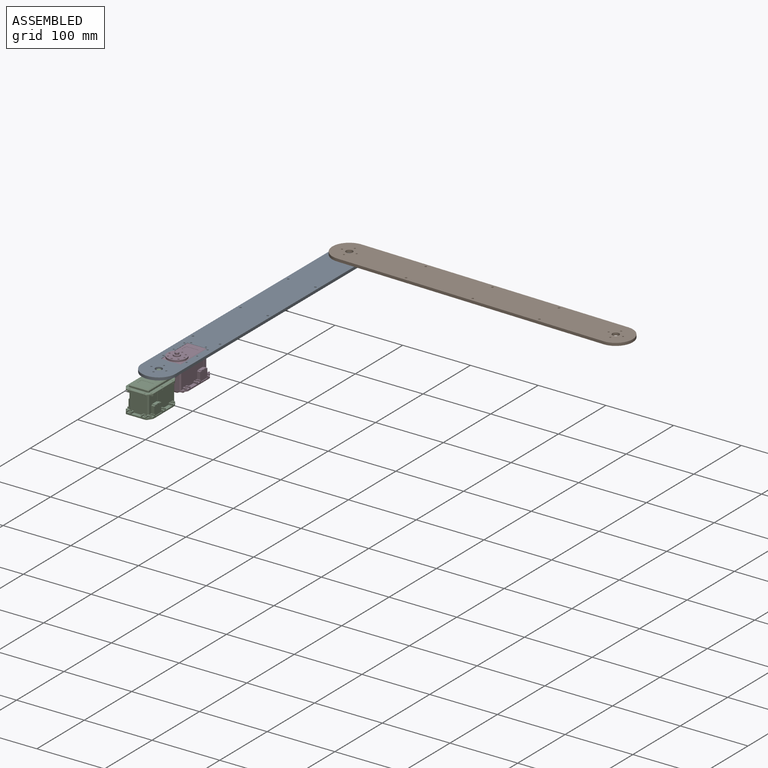
[diagram: assembled view]
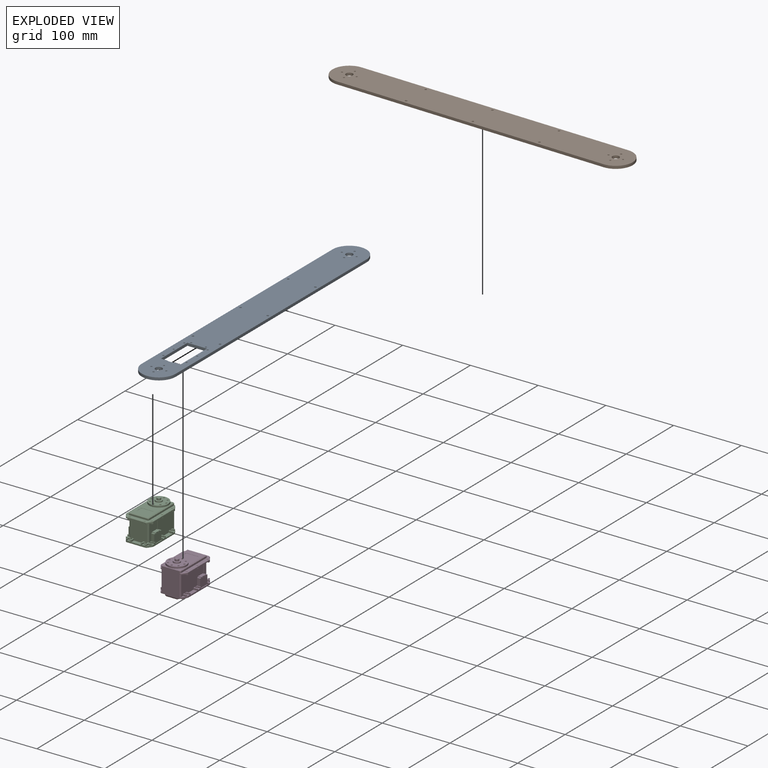
[diagram: exploded view]
GUIDED TOUR — FREECAD ASSEMBLY "arm_assembly"

This assembly has 4 components, labeled P0..P3 below (a component is one placed body or linked part; the same part can appear more than once), held together by 2 modeled joints plus 2 derived contact edges. A joint is a constraint between two components; its type names the relative motion it leaves free:
  CONTACT — a derived adjacency edge — the two components touch in the source model (clearance under 2% of the assembly's diagonal); it is measured from the geometry, not a modeled constraint,
  REVOLUTE — leaves rotation about the listed axis free (a hinge).
Axis/direction vectors are unit vectors and 'through' points are millimeter coordinates, both in the assembly's world frame.

MATES
  1. REVOLUTE [Revolute] "Joint": P0 <-> P2, axis (0.000, 0.000, 1.000) through (0.00, 0.00, 25.30) mm
  2. REVOLUTE [Revolute] "Joint001": P1 <-> P0, axis (0.000, 0.000, 1.000) through (1.29, 400.00, 29.30) mm
  3. CONTACT "contact_0_3": P0 <-> P3, contact direction (0.000, 0.000, -1.000) through (-11.26, 84.32, 25.34) mm (derived from contact, not a modeled constraint)
  4. CONTACT "contact_2_3": P2 <-> P3, contact direction (0.000, 1.000, 0.000) through (-0.29, 19.01, 26.77) mm (derived from contact, not a modeled constraint)

ASSEMBLY ORDER
  1. P0 — the base component [order verified]
  2. P3 [order verified]
  3. P2 [order verified]
  4. P1 [order verified]
Order-tag legend:
  [order verified] — this step's position reverses a verified removal order: the component was checked to insert without passing through the ones already placed.

Of the 4 components, 2 carry a construction recipe — the FreeCAD feature program (sketches with constraints, then the solid features that consume them) that regenerates the part from scratch, quoted from this document or from the linked companion document it references; the rest are supplied as boundary geometry only. The tour below walks the components in assembly order: each is shown spotlighted twice — in the assembled view, then in the exploded view, where a leader line traces a displaced component back to its assembled socket (components that stay in place when exploded have no leader line; saturated green if recipe-attached, orange if geometry-only; every other component desaturated gray) — followed by its recipe or geometry summary and the mates that hold it.
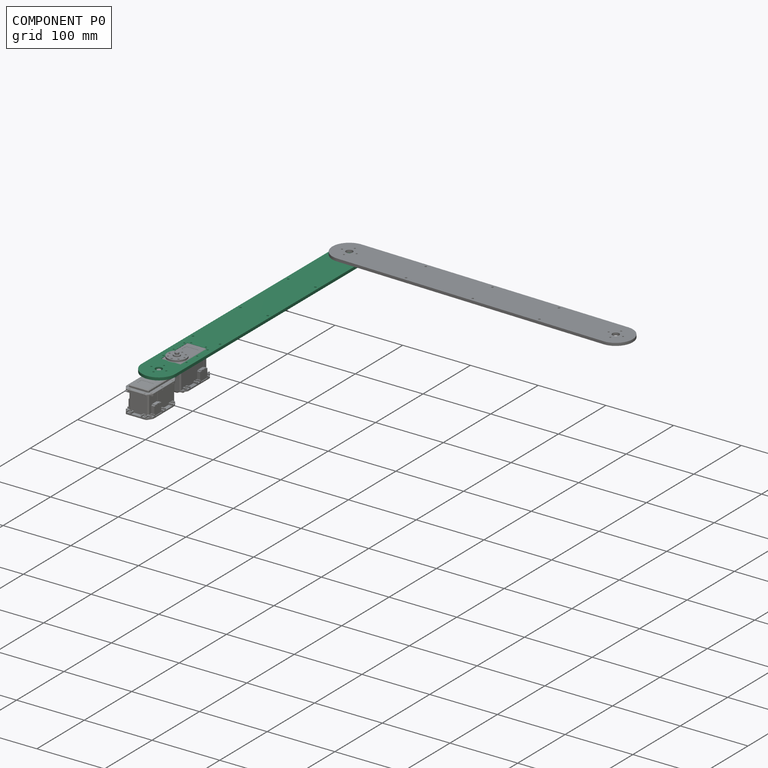
[diagram: component P0 — assembled]
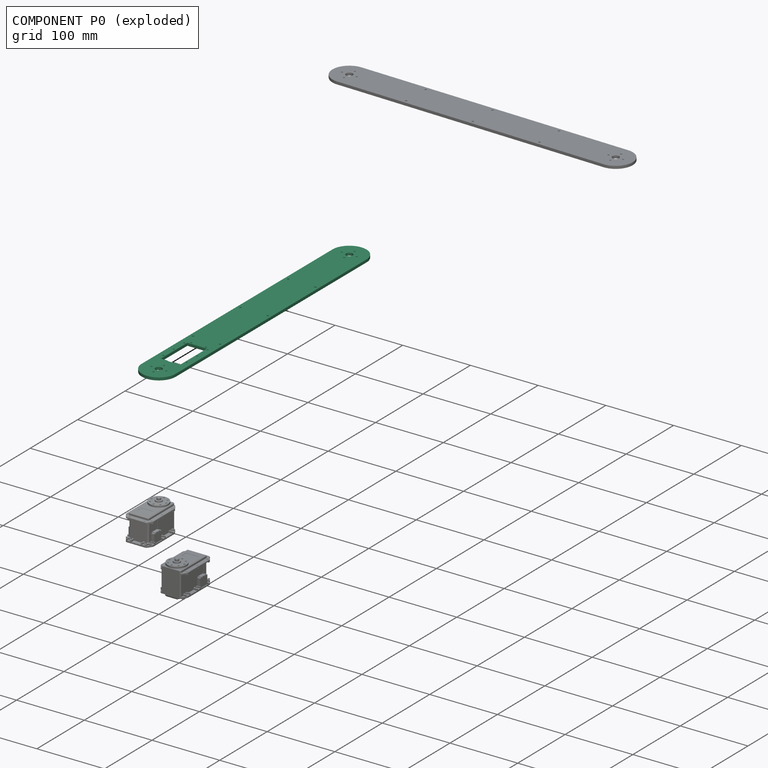
[diagram: component P0 — exploded]
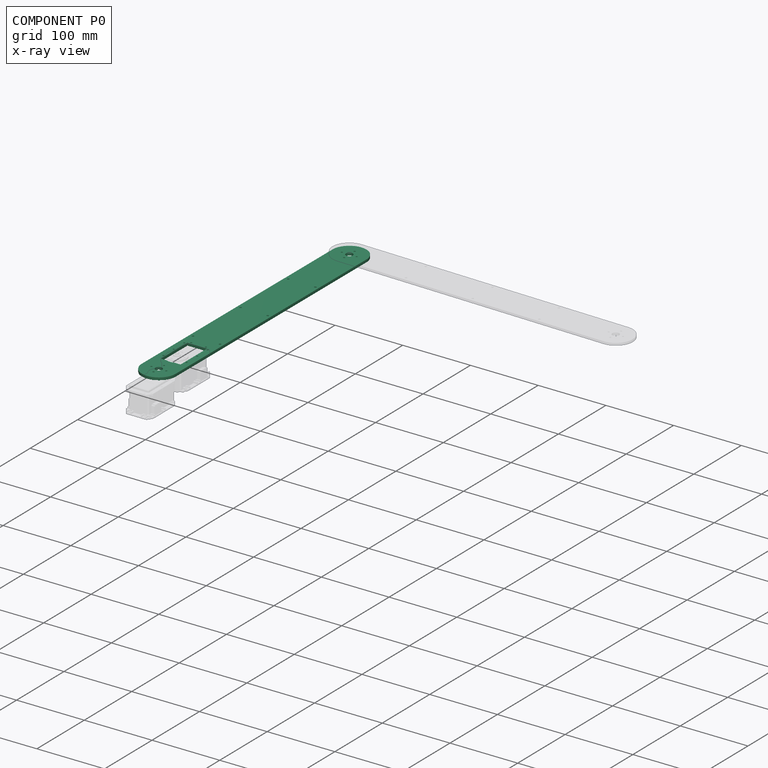
[diagram: component P0 — x-ray view]
COMPONENT P0 — recipe-attached ("arm_low_1", modeled in this document).
Held by: REVOLUTE mate "Joint" to P2; REVOLUTE mate "Joint001" to P1; resting contact with P3 (derived edge).
Construction recipe (the document's own serialized feature program — sketch geometry with constraints, then the solid features built on it; lengths are millimeters unless a unit is written):

FEATURE [Sketcher::SketchObject] Sketch
  ArcFitTolerance = 1e-06
  AttachmentSupport = -> [XY_Plane]
  FullyConstrained = false
  MakeInternals = false
  MapMode = 5
  sketch-geometry (67):
    g0: LineSegment [constr] StartX=1.5008e-12 StartY=20 StartZ=0 EndX=1.5008e-12 EndY=-20 EndZ=0
    g1: LineSegment [constr] StartX=-2.359e-12 StartY=0 StartZ=0 EndX=-2.359e-12 EndY=400 EndZ=0
    g2: LineSegment [constr] StartX=1.5008e-12 StartY=20 StartZ=0 EndX=1.5008e-12 EndY=25 EndZ=0
    g3: Circle CenterX=-2.359e-12 CenterY=400 CenterZ=0 NormalX=0 NormalY=0 NormalZ=1 AngleXU=0 Radius=5
    g4: Circle CenterX=-2.359e-12 CenterY=400 CenterZ=0 NormalX=0 NormalY=0 NormalZ=1 AngleXU=0 Radius=2
    g5: Circle CenterX=-10.9997 CenterY=400 CenterZ=0 NormalX=0 NormalY=0 NormalZ=1 AngleXU=0 Radius=1.25
    g6: Circle CenterX=0 CenterY=389 CenterZ=0 NormalX=0 NormalY=0 NormalZ=1 AngleXU=0 Radius=1.25
    g7: Circle CenterX=10.9997 CenterY=400 CenterZ=0 NormalX=0 NormalY=0 NormalZ=1 AngleXU=0 Radius=1.25
    g8: Circle CenterX=0 CenterY=411 CenterZ=0 NormalX=0 NormalY=0 NormalZ=1 AngleXU=0 Radius=1.25
    g9: LineSegment [constr] StartX=0 StartY=-5 StartZ=0 EndX=0 EndY=5.99996 EndZ=0
    g10: Circle [constr] CenterX=0 CenterY=0 CenterZ=0 NormalX=0 NormalY=0 NormalZ=1 AngleXU=0 Radius=14
    g11: LineSegment [constr] StartX=0 StartY=0 StartZ=0 EndX=25.23 EndY=0 EndZ=0
    g12: Circle [constr] CenterX=0 CenterY=-3.8e-05 CenterZ=0 NormalX=0 NormalY=0 NormalZ=1 AngleXU=0 Radius=11
    g13: Circle CenterX=0 CenterY=0 CenterZ=0 NormalX=0 NormalY=0 NormalZ=1 AngleXU=0 Radius=5
    g14: Circle CenterX=10.9997 CenterY=0 CenterZ=0 NormalX=0 NormalY=0 NormalZ=1 AngleXU=0 Radius=1.25
    g15: Circle CenterX=-10.9997 CenterY=0 CenterZ=0 NormalX=0 NormalY=0 NormalZ=1 AngleXU=0 Radius=1.25
    g16: Circle CenterX=0 CenterY=-10.9997 CenterZ=0 NormalX=0 NormalY=0 NormalZ=1 AngleXU=0 Radius=1.25
    g17: Circle CenterX=0 CenterY=11 CenterZ=0 NormalX=0 NormalY=0 NormalZ=1 AngleXU=0 Radius=1.25
    g18: LineSegment [constr] StartX=0 StartY=0 StartZ=0 EndX=-25 EndY=0 EndZ=0
    g19: LineSegment [constr] StartX=20.1368 StartY=86.0999 StartZ=0 EndX=20.1368 EndY=24.9999 EndZ=0
    g20: LineSegment [constr] StartX=0.036848 StartY=80.5 StartZ=0 EndX=14.5368 EndY=80.5 EndZ=0
    g21: LineSegment StartX=14.5368 StartY=80.5 StartZ=0 EndX=-14.4632 EndY=80.5 EndZ=0
    g22: LineSegment StartX=14.5368 StartY=80.5 StartZ=0 EndX=14.5368 EndY=24.9999 EndZ=0
    g23: Circle CenterX=11.0368 CenterY=83.3 CenterZ=0 NormalX=0 NormalY=0 NormalZ=1 AngleXU=0 Radius=1.25
    g24: Circle CenterX=17.3368 CenterY=78 CenterZ=0 NormalX=0 NormalY=0 NormalZ=1 AngleXU=0 Radius=1.25
    g25: LineSegment [constr] StartX=-20.0632 StartY=86.0999 StartZ=0 EndX=20.1368 EndY=86.0999 EndZ=0
    g26: Circle CenterX=17.3368 CenterY=56 CenterZ=0 NormalX=0 NormalY=0 NormalZ=1 AngleXU=0 Radius=1.25
    g27: Circle CenterX=17.3368 CenterY=34 CenterZ=0 NormalX=0 NormalY=0 NormalZ=1 AngleXU=0 Radius=1.25
    g28: Circle [constr] CenterX=0.036848 CenterY=37.9999 CenterZ=0 NormalX=0 NormalY=0 NormalZ=1 AngleXU=0 Radius=14
    g29: ArcOfCircle CenterX=0.036848 CenterY=37.9999 CenterZ=0 NormalX=0 NormalY=0 NormalZ=1 AngleXU=0 Radius=14 StartAngle=4.33214 EndAngle=5.09264
    g30: LineSegment StartX=5.233 StartY=24.9999 StartZ=0 EndX=14.5368 EndY=24.9999 EndZ=0
    g31: LineSegment [constr] StartX=14.5368 StartY=24.9999 StartZ=0 EndX=20.1368 EndY=24.9999 EndZ=0
    g32: LineSegment [constr] StartX=17.3368 StartY=56 StartZ=0 EndX=-17.2632 EndY=56 EndZ=0
    g33: LineSegment [constr] StartX=-20.0632 StartY=24.9999 StartZ=0 EndX=-20.0632 EndY=86.0999 EndZ=0
    g34: LineSegment StartX=-14.4632 StartY=80.5 StartZ=0 EndX=-14.4632 EndY=24.9999 EndZ=0
    g35: Circle CenterX=-17.2632 CenterY=78 CenterZ=0 NormalX=0 NormalY=0 NormalZ=1 AngleXU=0 Radius=1.25
    g36: Circle CenterX=-10.9632 CenterY=83.3 CenterZ=0 NormalX=0 NormalY=0 NormalZ=1 AngleXU=0 Radius=1.25
    g37: Circle CenterX=-17.2632 CenterY=56 CenterZ=0 NormalX=0 NormalY=0 NormalZ=1 AngleXU=0 Radius=1.25
    g38: Circle CenterX=-17.2632 CenterY=34 CenterZ=0 NormalX=0 NormalY=0 NormalZ=1 AngleXU=0 Radius=1.25
    g39: LineSegment StartX=-14.4632 StartY=24.9999 StartZ=0 EndX=-5.15931 EndY=24.9999 EndZ=0
    g40: LineSegment [constr] StartX=-20.0632 StartY=24.9999 StartZ=0 EndX=-14.4632 EndY=24.9999 EndZ=0
    g41: ArcOfCircle CenterX=0.115002 CenterY=3.75548e-06 CenterZ=0 NormalX=0 NormalY=0 NormalZ=1 AngleXU=0 Radius=25.115 StartAngle=3.14159 EndAngle=6.28319
    g42: ArcOfCircle CenterX=0.115002 CenterY=399.959 CenterZ=0 NormalX=0 NormalY=0 NormalZ=1 AngleXU=0 Radius=25.115 StartAngle=0 EndAngle=3.14159
    g43: LineSegment StartX=-25 StartY=3.75548e-06 StartZ=0 EndX=-25 EndY=399.959 EndZ=0
    g44: LineSegment StartX=25.23 StartY=3.75548e-06 StartZ=0 EndX=25.23 EndY=399.959 EndZ=0
    g45: LineSegment [constr] StartX=25.23 StartY=199.98 StartZ=0 EndX=-25 EndY=199.98 EndZ=0
    g46: LineSegment [constr] StartX=25.23 StartY=199.98 StartZ=0 EndX=55.23 EndY=199.98 EndZ=0
    g47: LineSegment [constr] StartX=25.23 StartY=0 StartZ=0 EndX=55.23 EndY=0 EndZ=0
    g48: LineSegment [constr] StartX=55.23 StartY=0 StartZ=0 EndX=55.23 EndY=199.98 EndZ=0
    g49: LineSegment [constr] StartX=55.23 StartY=99.9898 StartZ=0 EndX=25.23 EndY=99.9898 EndZ=0
    g50: LineSegment [constr] StartX=25.23 StartY=99.9898 StartZ=0 EndX=-25 EndY=99.9898 EndZ=0
    g51: LineSegment [constr] StartX=25.23 StartY=399.959 StartZ=0 EndX=55.23 EndY=399.959 EndZ=0
    g52: LineSegment [constr] StartX=55.23 StartY=399.959 StartZ=0 EndX=55.23 EndY=199.98 EndZ=0
    g53: LineSegment [constr] StartX=55.23 StartY=299.969 StartZ=0 EndX=25.23 EndY=299.969 EndZ=0
    g54: LineSegment [constr] StartX=25.23 StartY=299.969 StartZ=0 EndX=-25 EndY=299.969 EndZ=0
    g55: LineSegment [constr] StartX=-25 StartY=299.969 StartZ=0 EndX=-20 EndY=299.969 EndZ=0
    g56: LineSegment [constr] StartX=-20 StartY=299.969 StartZ=0 EndX=-20 EndY=199.98 EndZ=0
    g57: LineSegment [constr] StartX=-20 StartY=199.98 StartZ=0 EndX=-20 EndY=99.9898 EndZ=0
    g58: LineSegment [constr] StartX=25.23 StartY=299.969 StartZ=0 EndX=20.23 EndY=299.969 EndZ=0
    g59: LineSegment [constr] StartX=20.23 StartY=299.969 StartZ=0 EndX=20.23 EndY=199.98 EndZ=0
    g60: LineSegment [constr] StartX=20.23 StartY=199.98 StartZ=0 EndX=20.23 EndY=99.9898 EndZ=0
    g61: Circle CenterX=-20 CenterY=299.969 CenterZ=0 NormalX=0 NormalY=0 NormalZ=1 AngleXU=0 Radius=1.5
    g62: Circle CenterX=20.23 CenterY=299.969 CenterZ=0 NormalX=0 NormalY=0 NormalZ=1 AngleXU=0 Radius=1.5
    g63: Circle CenterX=-20 CenterY=199.98 CenterZ=0 NormalX=0 NormalY=0 NormalZ=1 AngleXU=0 Radius=1.5
    g64: Circle CenterX=20.23 CenterY=199.98 CenterZ=0 NormalX=0 NormalY=0 NormalZ=1 AngleXU=0 Radius=1.5
    g65: Circle CenterX=-20 CenterY=99.9898 CenterZ=0 NormalX=0 NormalY=0 NormalZ=1 AngleXU=0 Radius=1.5
    g66: Circle CenterX=20.23 CenterY=99.9898 CenterZ=0 NormalX=0 NormalY=0 NormalZ=1 AngleXU=0 Radius=1.5
  constraints (132):
    c: Vertical(g0)
    c: Vertical(g1)
    c: Coincident(g2,g0)
    c: Vertical(g2)
    c: Diameter(g3) = 10
    c: Coincident(g3,g1)
    c: Diameter(g4) = 4
    c: Coincident(g4,g1)
    c: Diameter(g8) = 2.5
    c: Diameter(g5) = 2.5
    c: Diameter(g6) = 2.5
    c: Diameter(g7) = 2.5
    c: Vertical(g9)
    c: Diameter(g10) = 28
    c: Coincident(g18,g10)
    c: Horizontal(g18)
    c: Coincident(g11,g10)
    c: Horizontal(g11)
    c: Diameter(g12) = 22
    c: Diameter(g13) = 10
    c: Coincident(g13,g10)
    c: Diameter(g17) = 2.5
    c: Diameter(g15) = 2.5
    c: Diameter(g16) = 2.5
    c: Diameter(g14) = 2.5
    c: Coincident(g25,g19)
    c: Coincident(g33,g25)
    c: Horizontal(g25)
    c: Vertical(g19)
    c: Vertical(g33)
    c: Distance(g19,g33) = 40.2
    c: Distance(g25,g33) = 61.1
    c: Diameter(g29) = 28
    c: Horizontal(g20)
    c: Coincident(g21,g20)
    c: Horizontal(g21)
    c: Coincident(g34,g21)
    c: Vertical(g34)
    c: Coincident(g22,g20)
    c: Vertical(g22)
    c: Diameter(g23) = 2.5
    c: Equal(g23,g36)
    c: Equal(g23,g27)
    c: Equal(g23,g38)
    c: Equal(g23,g37)
    c: Equal(g23,g35)
    c: Equal(g23,g24)
    c: Equal(g23,g26)
    c: Coincident(g28,g29)
    c: PointOnObject(g29,g28)
    c: Coincident(g30,g29)
    c: Coincident(g30,g22)
    c: Horizontal(g30)
    c: Coincident(g31,g22)
    c: Coincident(g31,g19)
    c: Horizontal(g31)
    c: Coincident(g39,g34)
    c: Coincident(g39,g29)
    c: Horizontal(g39)
    c: Coincident(g40,g33)
    c: Coincident(g40,g34)
    c: Horizontal(g40)
    c: Coincident(g32,g26)
    c: Coincident(g32,g37)
    c: Horizontal(g32)
    c: DistanceY(g28,g1) = 362
    c: Tangent(g41,g43) = 1.5708
    c: Tangent(g41,g44) = -1.5708
    c: Tangent(g42,g43) = 1.5708
    c: Tangent(g42,g44) = -1.5708
    c: Equal(g41,g42)
    c: Symmetric(g44,g44,g45)
    c: Symmetric(g43,g43,g45)
    c: Horizontal(g45)
    c: Distance(g46) = 30
    c: Horizontal(g46)
    c: Coincident(g46,g45)
    c: Distance(g47) = 30
    c: Horizontal(g47)
    c: Coincident(g47,g11)
    c: PointOnObject(g47,g-1)
    c: Coincident(g48,g47)
    c: Coincident(g48,g46)
    c: Vertical(g48)
    c: Symmetric(g48,g48,g49)
    c: PointOnObject(g49,g44)
    c: Horizontal(g49)
    c: Coincident(g50,g49)
    c: PointOnObject(g50,g43)
    c: Horizontal(g50)
    c: Distance(g51) = 30
    c: Horizontal(g51)
    c: Coincident(g51,g42)
    c: Coincident(g52,g51)
    c: Coincident(g52,g46)
    c: Symmetric(g52,g52,g53)
    c: PointOnObject(g53,g44)
    c: Horizontal(g53)
    c: Coincident(g54,g53)
    c: PointOnObject(g54,g43)
    c: Horizontal(g54)
    c: Distance(g55) = 5
    c: Coincident(g55,g54)
    c: PointOnObject(g55,g54)
    c: Coincident(g56,g55)
    c: PointOnObject(g56,g45)
    c: Vertical(g56)
    c: Coincident(g57,g56)
    c: PointOnObject(g57,g50)
    c: Vertical(g57)
    c: Distance(g58) = 5
    c: Coincident(g58,g53)
    c: PointOnObject(g58,g54)
    c: Coincident(g59,g58)
    c: PointOnObject(g59,g45)
    c: Vertical(g59)
    c: Coincident(g60,g59)
    c: PointOnObject(g60,g50)
    c: Vertical(g60)
    c: Coincident(g61,g55)
    c: Diameter(g61) = 3
    c: Coincident(g62,g58)
    c: Equal(g61,g62)
    c: Coincident(g63,g56)
    c: Equal(g61,g63)
    c: Coincident(g64,g59)
    c: Equal(g63,g64)
    c: Coincident(g65,g57)
    c: Equal(g63,g65)
    c: Coincident(g66,g60)
    c: Equal(g65,g66)
    c: DistanceY(g41,g28) = 37.9999
FEATURE [PartDesign::Pad] Pad
  Direction = (0,0,1)
  Length = 4
  Length2 = 10
  Profile = -> Sketch
  ReferenceAxis = -> Sketch [N_Axis]
  Refine = true
  Suppressed = false
  Type = 0
FEATURE [PartDesign::Body] Body  label="arm_low_1"
  AllowCompound = false
  Group = -> [Sketch,Pad]
  Origin = -> Origin
  Placement = pos=(0,0,25.3) rot=(0,0,-1;0.003227rad)
  Tip = -> Pad
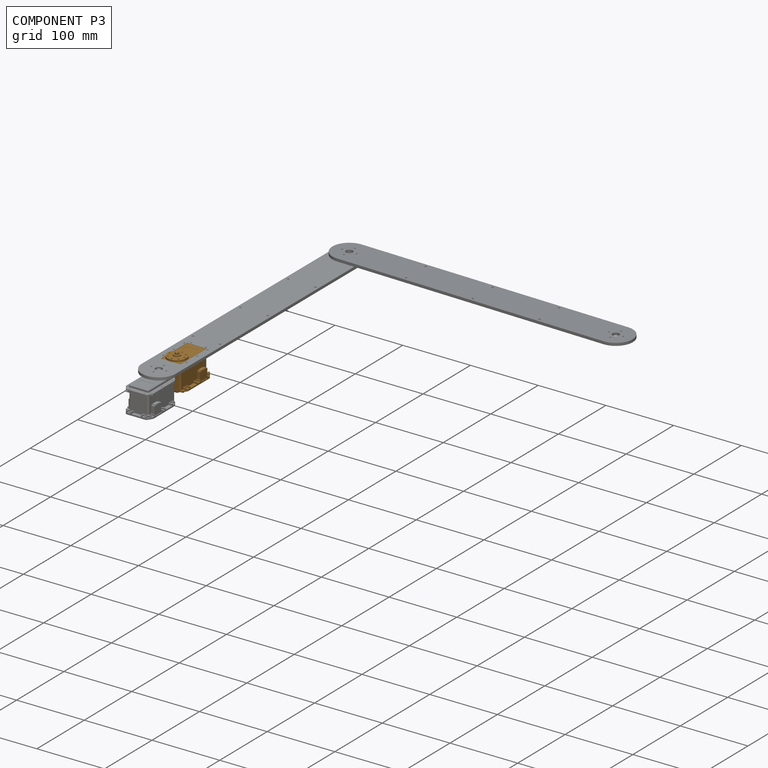
[diagram: component P3 — assembled]
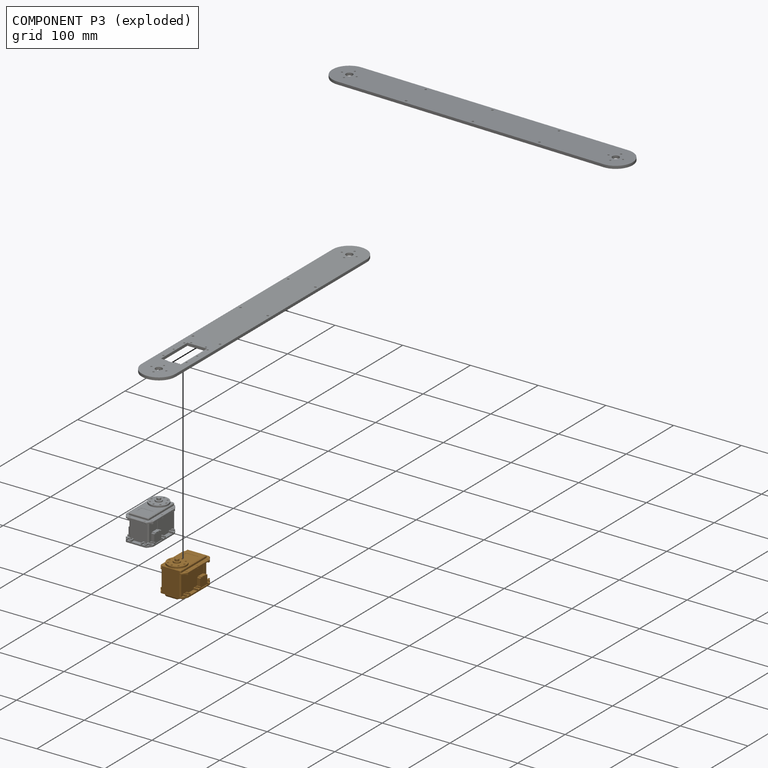
[diagram: component P3 — exploded]
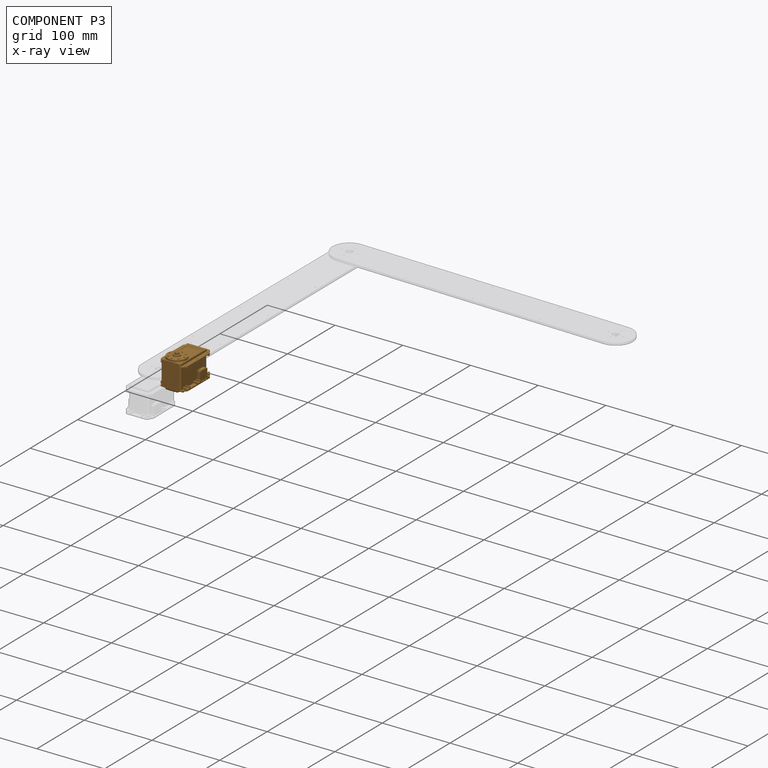
[diagram: component P3 — x-ray view]
COMPONENT P3 — geometry summary ("DC05_M01_DUMMY001"; no construction recipe available for this part):
  bounding box: 62.1 x 50.0 x 40.3 mm
  tessellated surface: 17,468 triangles
  volume: 72104 mm^3 (58% of its bounding box)
  symmetry: mirror-symmetric across its x mid-plane
Held by: resting contact with P0 (derived edge); resting contact with P2 (derived edge).
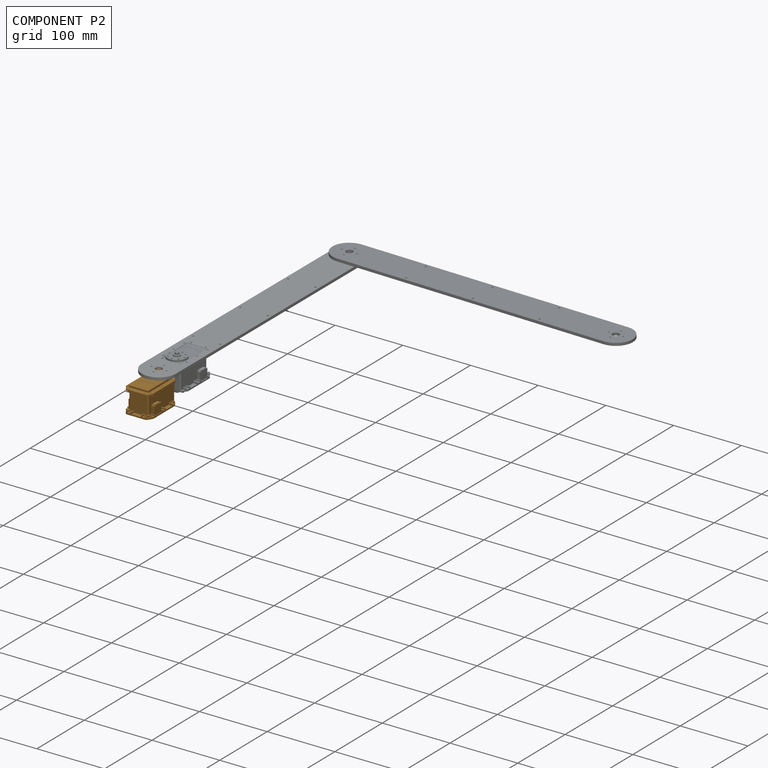
[diagram: component P2 — assembled]
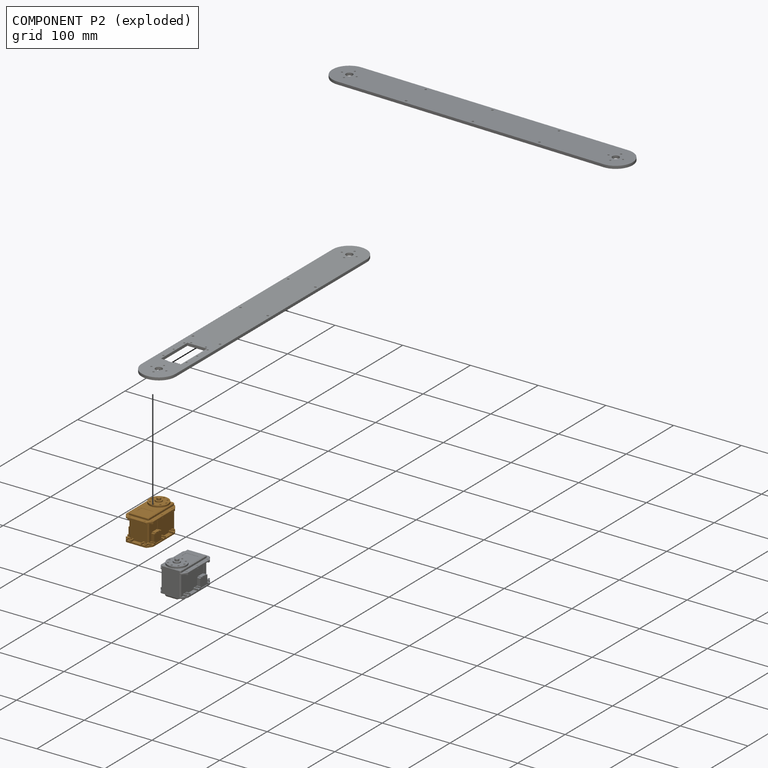
[diagram: component P2 — exploded]
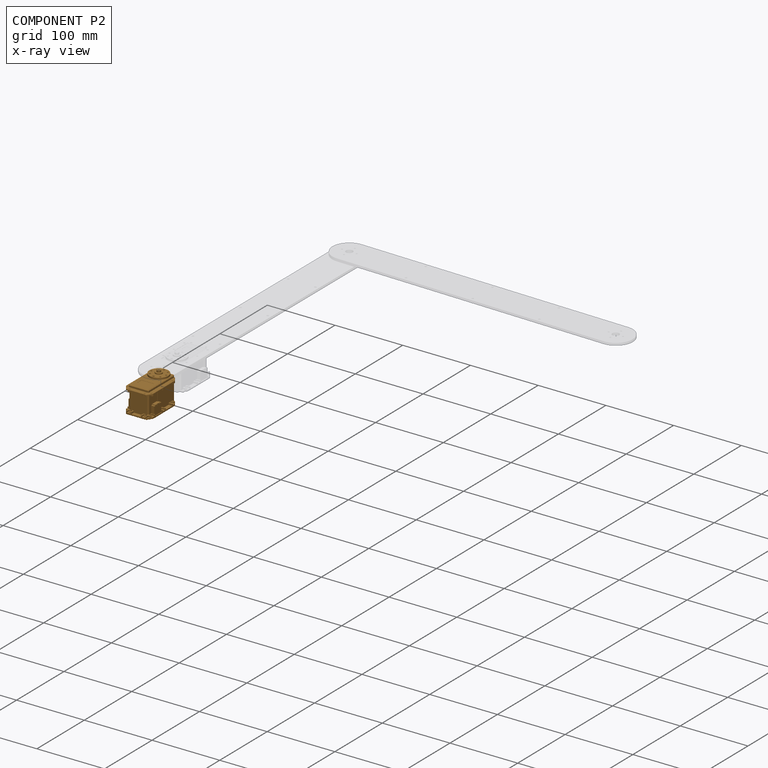
[diagram: component P2 — x-ray view]
COMPONENT P2 — geometry summary ("DC05_M01_DUMMY"; no construction recipe available for this part):
  bounding box: 62.1 x 50.0 x 40.2 mm
  tessellated surface: 17,468 triangles
  volume: 72104 mm^3 (58% of its bounding box)
  symmetry: mirror-symmetric across its x mid-plane
Held by: REVOLUTE mate "Joint" to P0; resting contact with P3 (derived edge).
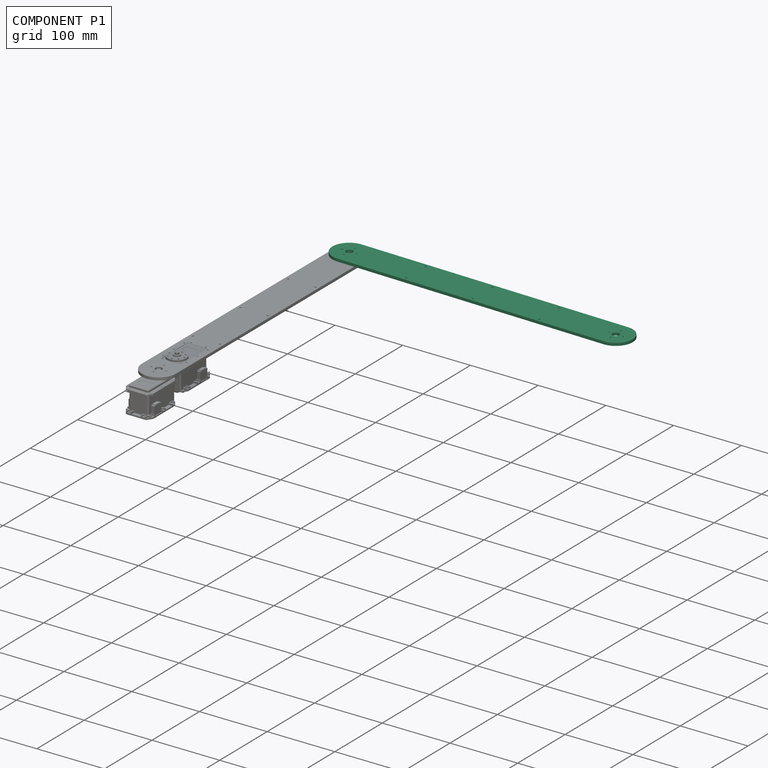
[diagram: component P1 — assembled]
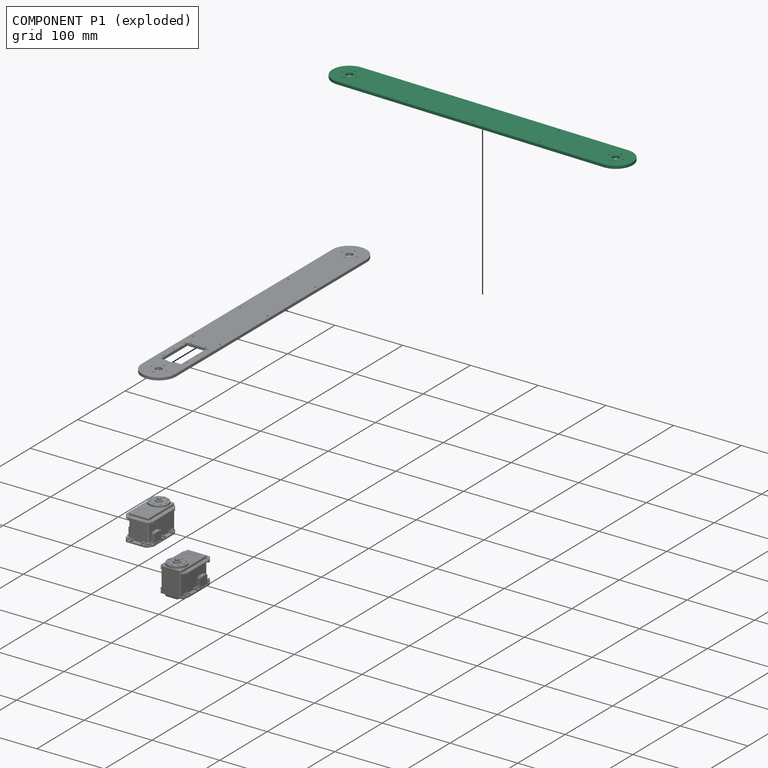
[diagram: component P1 — exploded]
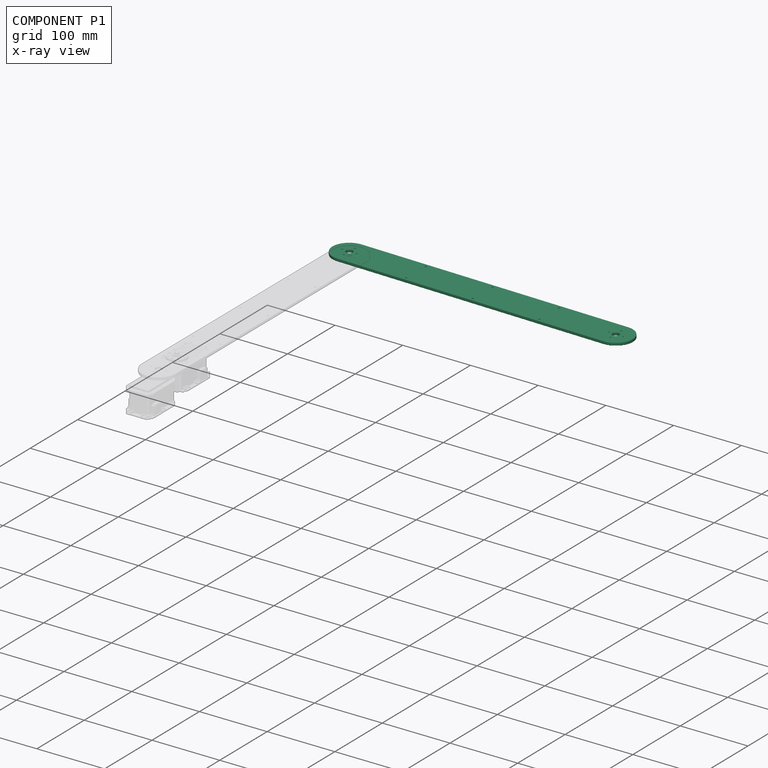
[diagram: component P1 — x-ray view]
COMPONENT P1 — recipe-attached ("arm_high_1", modeled in this document).
Held by: REVOLUTE mate "Joint001" to P0.
Construction recipe (the document's own serialized feature program — sketch geometry with constraints, then the solid features built on it; lengths are millimeters unless a unit is written):

FEATURE [Sketcher::SketchObject] Sketch001
  ArcFitTolerance = 1e-06
  FullyConstrained = false
  MakeInternals = false
  MapMode = 5
  sketch-geometry (41):
    g0: Circle [constr] CenterX=7e-16 CenterY=0.000303 CenterZ=0 NormalX=0 NormalY=0 NormalZ=1 AngleXU=0 Radius=14
    g1: LineSegment [constr] StartX=7e-16 StartY=0.000303 StartZ=0 EndX=7e-16 EndY=400.001 EndZ=0
    g2: Circle CenterX=7e-16 CenterY=400.001 CenterZ=0 NormalX=0 NormalY=0 NormalZ=1 AngleXU=0 Radius=5
    g3: Circle CenterX=7e-16 CenterY=0 CenterZ=0 NormalX=0 NormalY=0 NormalZ=1 AngleXU=0 Radius=5
    g4: Circle CenterX=7e-16 CenterY=400.001 CenterZ=0 NormalX=0 NormalY=0 NormalZ=1 AngleXU=0 Radius=2
    g5: Circle CenterX=7e-16 CenterY=0.000303 CenterZ=0 NormalX=0 NormalY=0 NormalZ=1 AngleXU=0 Radius=2
    g6: Circle [constr] CenterX=0 CenterY=0 CenterZ=0 NormalX=0 NormalY=0 NormalZ=1 AngleXU=0 Radius=11
    g7: ArcOfCircle CenterX=7e-16 CenterY=0 CenterZ=0 NormalX=0 NormalY=0 NormalZ=1 AngleXU=0 Radius=25 StartAngle=3.14159 EndAngle=6.28319
    g8: ArcOfCircle CenterX=7e-16 CenterY=400.001 CenterZ=0 NormalX=0 NormalY=0 NormalZ=1 AngleXU=0 Radius=25 StartAngle=6e-16 EndAngle=3.14159
    g9: LineSegment StartX=-25 StartY=-8e-15 StartZ=0 EndX=-25 EndY=400.001 EndZ=0
    g10: LineSegment StartX=25 StartY=0 StartZ=0 EndX=25 EndY=400.001 EndZ=0
    g11: Circle CenterX=10.9997 CenterY=400.001 CenterZ=0 NormalX=0 NormalY=0 NormalZ=1 AngleXU=0 Radius=1.25
    g12: Circle CenterX=0 CenterY=411.001 CenterZ=0 NormalX=0 NormalY=0 NormalZ=1 AngleXU=0 Radius=1.25
    g13: Circle CenterX=-10.9997 CenterY=400.001 CenterZ=0 NormalX=0 NormalY=0 NormalZ=1 AngleXU=0 Radius=1.25
    g14: Circle CenterX=0 CenterY=389.001 CenterZ=0 NormalX=0 NormalY=0 NormalZ=1 AngleXU=0 Radius=1.25
    g15: Circle CenterX=10.9997 CenterY=0.000303 CenterZ=0 NormalX=0 NormalY=0 NormalZ=1 AngleXU=0 Radius=1.25
    g16: Circle CenterX=0 CenterY=11 CenterZ=0 NormalX=0 NormalY=0 NormalZ=1 AngleXU=0 Radius=1.25
    g17: Circle CenterX=-10.9997 CenterY=0.000303 CenterZ=0 NormalX=0 NormalY=0 NormalZ=1 AngleXU=0 Radius=1.25
    g18: Circle CenterX=0 CenterY=-10.9994 CenterZ=0 NormalX=0 NormalY=0 NormalZ=1 AngleXU=0 Radius=1.25
    g19: LineSegment [constr] StartX=25 StartY=200 StartZ=0 EndX=-25 EndY=200 EndZ=0
    g20: LineSegment [constr] StartX=25 StartY=200 StartZ=0 EndX=55 EndY=200 EndZ=0
    g21: LineSegment [constr] StartX=25 StartY=0 StartZ=0 EndX=55 EndY=0 EndZ=0
    g22: LineSegment [constr] StartX=25 StartY=400.001 StartZ=0 EndX=55 EndY=400.001 EndZ=0
    g23: LineSegment [constr] StartX=55 StartY=200 StartZ=0 EndX=55 EndY=400.001 EndZ=0
    g24: LineSegment [constr] StartX=55 StartY=200 StartZ=0 EndX=55 EndY=0 EndZ=0
    g25: LineSegment [constr] StartX=55 StartY=100 StartZ=0 EndX=25 EndY=100 EndZ=0
    g26: LineSegment [constr] StartX=25 StartY=100 StartZ=0 EndX=-25 EndY=100 EndZ=0
    g27: LineSegment [constr] StartX=55 StartY=300 StartZ=0 EndX=25 EndY=300 EndZ=0
    g28: LineSegment [constr] StartX=25 StartY=300 StartZ=0 EndX=-25 EndY=300 EndZ=0
    g29: LineSegment [constr] StartX=-25 StartY=300 StartZ=0 EndX=-20 EndY=300 EndZ=0
    g30: LineSegment [constr] StartX=-20 StartY=300 StartZ=0 EndX=-20 EndY=200 EndZ=0
    g31: LineSegment [constr] StartX=-20 StartY=200 StartZ=0 EndX=-20 EndY=100 EndZ=0
    g32: LineSegment [constr] StartX=25 StartY=100 StartZ=0 EndX=20 EndY=100 EndZ=0
    g33: LineSegment [constr] StartX=20 StartY=100 StartZ=0 EndX=20 EndY=200 EndZ=0
    g34: LineSegment [constr] StartX=20 StartY=200 StartZ=0 EndX=20 EndY=300 EndZ=0
    g35: Circle CenterX=-20 CenterY=300 CenterZ=0 NormalX=0 NormalY=0 NormalZ=1 AngleXU=0 Radius=1.5
    g36: Circle CenterX=20 CenterY=300 CenterZ=0 NormalX=0 NormalY=0 NormalZ=1 AngleXU=0 Radius=1.5
    g37: Circle CenterX=-20 CenterY=200 CenterZ=0 NormalX=0 NormalY=0 NormalZ=1 AngleXU=0 Radius=1.5
    g38: Circle CenterX=20 CenterY=200 CenterZ=0 NormalX=0 NormalY=0 NormalZ=1 AngleXU=0 Radius=1.5
    g39: Circle CenterX=-20 CenterY=100 CenterZ=0 NormalX=0 NormalY=0 NormalZ=1 AngleXU=0 Radius=1.5
    g40: Circle CenterX=20 CenterY=100 CenterZ=0 NormalX=0 NormalY=0 NormalZ=1 AngleXU=0 Radius=1.5
  constraints (85):
    c: Diameter(g0) = 28
    c: Coincident(g1,g0)
    c: Vertical(g1)
    c: Coincident(g2,g1)
    c: Diameter(g3) = 10
    c: Diameter(g4) = 4
    c: Coincident(g4,g1)
    c: Diameter(g5) = 4
    c: Coincident(g5,g0)
    c: Diameter(g6) = 22
    c: Tangent(g7,g9) = 1.5708
    c: Tangent(g7,g10) = -1.5708
    c: Tangent(g8,g9) = 1.5708
    c: Tangent(g8,g10) = -1.5708
    c: Equal(g7,g8)
    c: Radius(g7) = 25
    c: Coincident(g7,g3)
    c: Coincident(g8,g1)
    c: Vertical(g9)
    c: Diameter(g12) = 2.5
    c: Diameter(g13) = 2.5
    c: Diameter(g14) = 2.5
    c: Diameter(g11) = 2.5
    c: Diameter(g16) = 2.5
    c: Diameter(g17) = 2.5
    c: Diameter(g18) = 2.5
    c: Diameter(g15) = 2.5
    c: Symmetric(g10,g10,g19)
    c: Symmetric(g9,g9,g19)
    c: Distance(g20) = 30
    c: Horizontal(g20)
    c: Coincident(g20,g19)
    c: Distance(g21) = 30
    c: Horizontal(g21)
    c: Coincident(g21,g7)
    c: PointOnObject(g21,g-1)
    c: Distance(g22) = 30
    c: Horizontal(g22)
    c: Coincident(g22,g8)
    c: Coincident(g23,g20)
    c: Coincident(g23,g22)
    c: Coincident(g24,g20)
    c: Coincident(g24,g21)
    c: Symmetric(g24,g24,g25)
    c: PointOnObject(g25,g10)
    c: Horizontal(g25)
    c: Coincident(g26,g25)
    c: PointOnObject(g26,g9)
    c: Horizontal(g26)
    c: Symmetric(g23,g23,g27)
    c: PointOnObject(g27,g10)
    c: Horizontal(g27)
    c: Coincident(g28,g27)
    c: PointOnObject(g28,g9)
    c: Horizontal(g28)
    c: Distance(g29) = 5
    c: Horizontal(g29)
    c: Coincident(g29,g28)
    c: Coincident(g30,g29)
    c: PointOnObject(g30,g19)
    c: Vertical(g30)
    c: Coincident(g31,g30)
    c: PointOnObject(g31,g26)
    c: Vertical(g31)
    c: Distance(g32) = 5
    c: Horizontal(g32)
    c: Coincident(g32,g25)
    c: Coincident(g33,g32)
    c: PointOnObject(g33,g19)
    c: Vertical(g33)
    c: Coincident(g34,g33)
    c: PointOnObject(g34,g28)
    c: Vertical(g34)
    c: Diameter(g35) = 3
    c: Coincident(g35,g29)
    c: Coincident(g36,g34)
    c: Equal(g35,g36)
    c: Coincident(g37,g30)
    c: Equal(g35,g37)
    c: Coincident(g38,g33)
    c: Equal(g37,g38)
    c: Coincident(g39,g31)
    c: Equal(g37,g39)
    c: Coincident(g40,g32)
    c: Equal(g39,g40)
FEATURE [PartDesign::Pad] Pad001
  Direction = (0,0,1)
  Length = 4
  Length2 = 10
  Profile = -> Sketch001
  ReferenceAxis = -> Sketch001 [N_Axis]
  Refine = true
  Suppressed = false
  Type = 0
FEATURE [PartDesign::Body] Body001  label="arm_high_1"
  AllowCompound = false
  Group = -> [Sketch001,Pad001]
  Origin = -> Origin001
  Placement = pos=(401.187,390.836,29.3) rot=(0,0,1;1.54789rad)
  Tip = -> Pad001
PROVENANCE & LICENSES
Assembly and component geometry: a FreeCAD (.FCStd) document from a public repository crawl; components, placements and joints were extracted with FreeCAD and each solid tessellated.
Construction recipes: the document's own serialized feature recipes (and, for linked parts, the recipes of companion documents from the same project).
License: unknown-license-file.
Joints: native FreeCAD joints and A2plus constraints are mapped to standard mate types; edges marked 'derived from contact' connect touching components and are measured from the geometry, not modeled.
Verification: 2 of this assembly's 4 components carry a construction recipe (2 from this document itself); the rest are geometry-only. Every component's tessellation passed the extraction mesh gates (mesh-volume checksum against the B-rep where available, bounding-box inflation <= 2%).
Renders: orthographic iso camera (az 35 / el 25); the floor grid conveys scale (grid pitch printed in each image; no ruler). In the exploded view each component is displaced by its stored offset vector: the offsets alone carry the explosion direction (mate normal/axis signs are not orientation cues and do not encode it), and separation distances are assigned per mate-chain, not proportionally to assembly-order depth.
